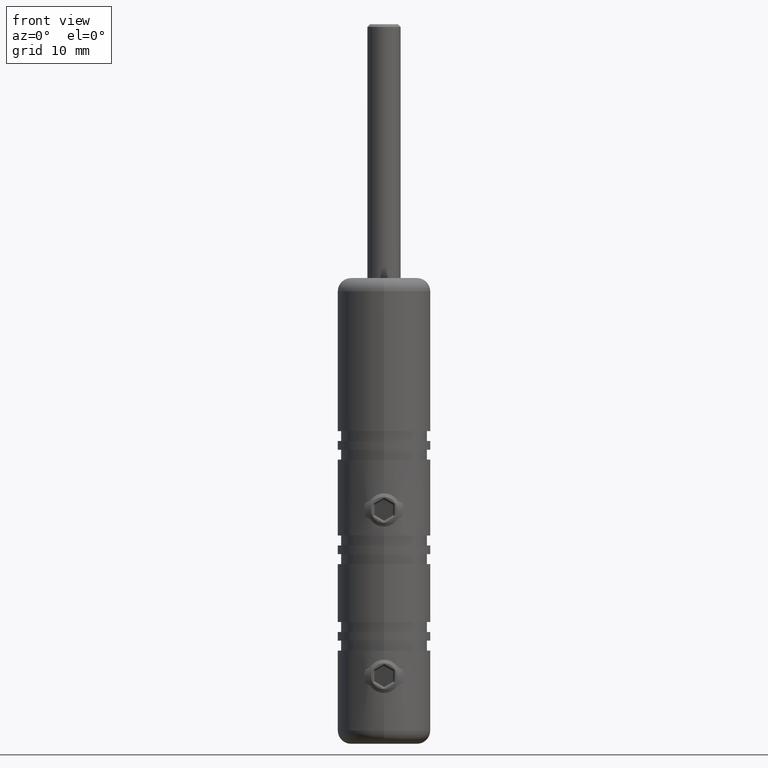
[diagram: clean part render]
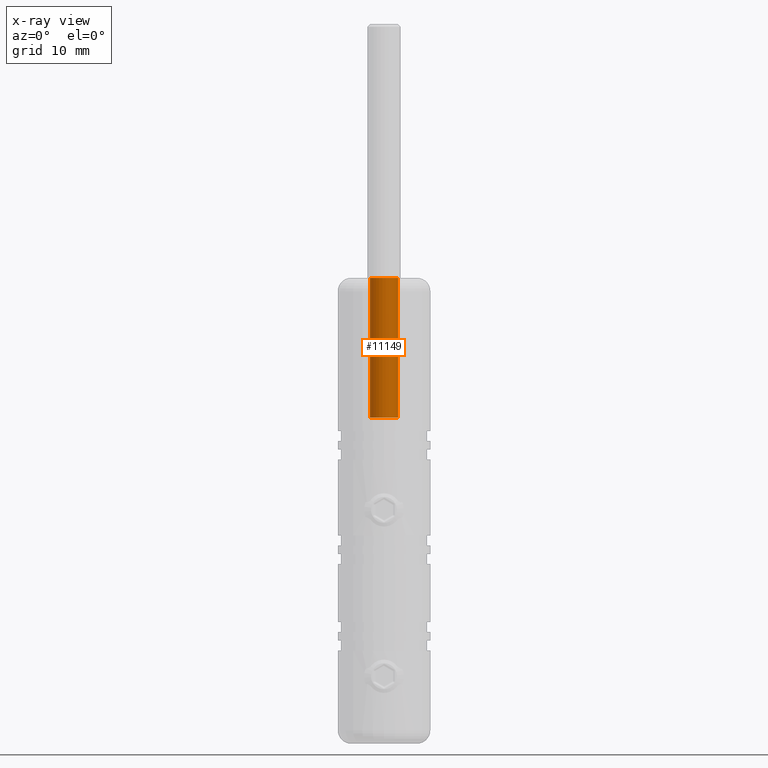
[diagram: x-ray — body ghosted, one internal face saturated and labeled with its STEP entity id]
A machine part, front view, then the same camera in x-ray: the body is ghosted and one INTERNAL B-rep face — a face not visible from any outside direction — is saturated and labeled: STEP entity #11149.
In plain terms, the highlighted cylindrical surface (edge-blend (fillet) strip) has radius 2.1 mm, axis along (0, 0, 1).
Its self-contained STEP definition (entity closure, byte-faithful):
#774 = DIRECTION ( 'NONE',  ( -0.0000000000000000000, -0.0000000000000000000, 1.000000000000000000 ) ) ;
#835 = VECTOR ( 'NONE', #11308, 1000.000000000000000 ) ;
#1606 = CIRCLE ( 'NONE', #3441, 2.099999999999997900 ) ;
#2979 = CARTESIAN_POINT ( 'NONE',  ( -2.099999999999995200, 4.189625374352711500E-015, 14.00000000000000200 ) ) ;
#3136 = DIRECTION ( 'NONE',  ( 1.000000000000000000, 0.0000000000000000000, 0.0000000000000000000 ) ) ;
#3441 = AXIS2_PLACEMENT_3D ( 'NONE', #6520, #13082, #9248 ) ;
#3635 = ORIENTED_EDGE ( 'NONE', *, *, #6529, .F. ) ;
#3778 = ORIENTED_EDGE ( 'NONE', *, *, #15212, .F. ) ;
#3925 = CIRCLE ( 'NONE', #16808, 2.099999999999995200 ) ;
#4547 = DIRECTION ( 'NONE',  ( -0.0000000000000000000, -0.0000000000000000000, 1.000000000000000000 ) ) ;
#4584 = CARTESIAN_POINT ( 'NONE',  ( 2.099999999999997900, 3.932449546531767800E-015, 35.00000000000000000 ) ) ;
#4914 = LINE ( 'NONE', #14162, #835 ) ;
#6520 = CARTESIAN_POINT ( 'NONE',  ( 0.0000000000000000000, 3.932449546531767800E-015, 35.00000000000000000 ) ) ;
#6529 = EDGE_CURVE ( 'NONE', #10477, #8632, #4914, .T. ) ;
#7201 = ORIENTED_EDGE ( 'NONE', *, *, #16350, .T. ) ;
#8615 = FACE_OUTER_BOUND ( 'NONE', #10085, .T. ) ;
#8632 = VERTEX_POINT ( 'NONE', #4584 ) ;
#9248 = DIRECTION ( 'NONE',  ( 1.000000000000000000, 0.0000000000000000000, 0.0000000000000000000 ) ) ;
#9857 = DIRECTION ( 'NONE',  ( 1.000000000000000000, 0.0000000000000000000, 0.0000000000000000000 ) ) ;
#10085 = EDGE_LOOP ( 'NONE', ( #3778, #7201, #12737, #3635 ) ) ;
#10115 = EDGE_CURVE ( 'NONE', #11685, #8632, #1606, .T. ) ;
#10477 = VERTEX_POINT ( 'NONE', #13790 ) ;
#11149 = ADVANCED_FACE ( 'NONE', ( #8615 ), #13335, .F. ) ;
#11308 = DIRECTION ( 'NONE',  ( -0.0000000000000000000, -0.0000000000000000000, 1.000000000000000000 ) ) ;
#11685 = VERTEX_POINT ( 'NONE', #13676 ) ;
#12332 = CARTESIAN_POINT ( 'NONE',  ( -2.099999999999996500, 4.189625374352711500E-015, 35.00000000000000000 ) ) ;
#12417 = CARTESIAN_POINT ( 'NONE',  ( 0.0000000000000000000, 3.932449546531767800E-015, 14.00000000000000200 ) ) ;
#12446 = LINE ( 'NONE', #12332, #14929 ) ;
#12737 = ORIENTED_EDGE ( 'NONE', *, *, #10115, .T. ) ;
#13082 = DIRECTION ( 'NONE',  ( -0.0000000000000000000, -0.0000000000000000000, 1.000000000000000000 ) ) ;
#13335 = CYLINDRICAL_SURFACE ( 'NONE', #14459, 2.099999999999996500 ) ;
#13676 = CARTESIAN_POINT ( 'NONE',  ( -2.099999999999997900, 4.189625374352711500E-015, 35.00000000000000000 ) ) ;
#13790 = CARTESIAN_POINT ( 'NONE',  ( 2.099999999999995200, 3.932449546531767800E-015, 14.00000000000000200 ) ) ;
#14162 = CARTESIAN_POINT ( 'NONE',  ( 2.099999999999996500, 3.932449546531767800E-015, 35.00000000000000000 ) ) ;
#14459 = AXIS2_PLACEMENT_3D ( 'NONE', #14808, #16171, #3136 ) ;
#14808 = CARTESIAN_POINT ( 'NONE',  ( 0.0000000000000000000, 3.932449546531767800E-015, 35.00000000000000000 ) ) ;
#14929 = VECTOR ( 'NONE', #4547, 1000.000000000000000 ) ;
#15212 = EDGE_CURVE ( 'NONE', #16437, #10477, #3925, .T. ) ;
#16171 = DIRECTION ( 'NONE',  ( -0.0000000000000000000, -0.0000000000000000000, 1.000000000000000000 ) ) ;
#16350 = EDGE_CURVE ( 'NONE', #16437, #11685, #12446, .T. ) ;
#16437 = VERTEX_POINT ( 'NONE', #2979 ) ;
#16808 = AXIS2_PLACEMENT_3D ( 'NONE', #12417, #774, #9857 ) ;